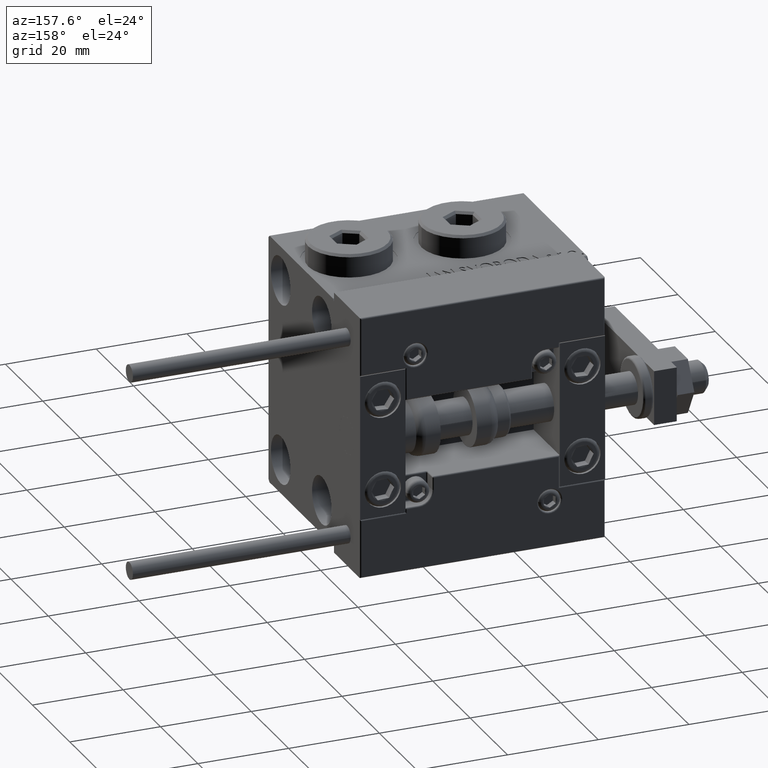
[diagram: clean part render]
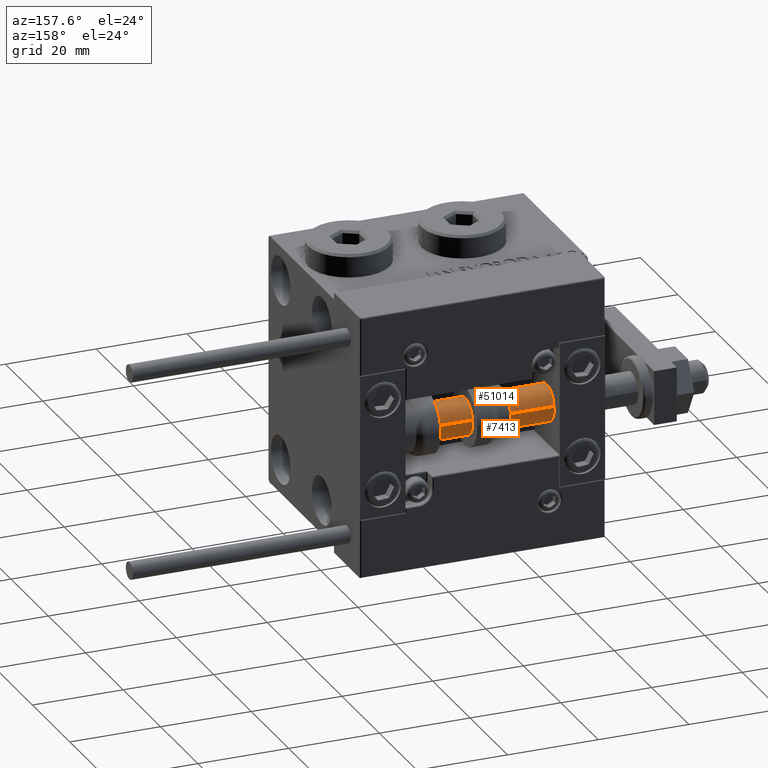
[diagram: same view with one multi-face feature highlighted, each face labeled with its STEP entity id]
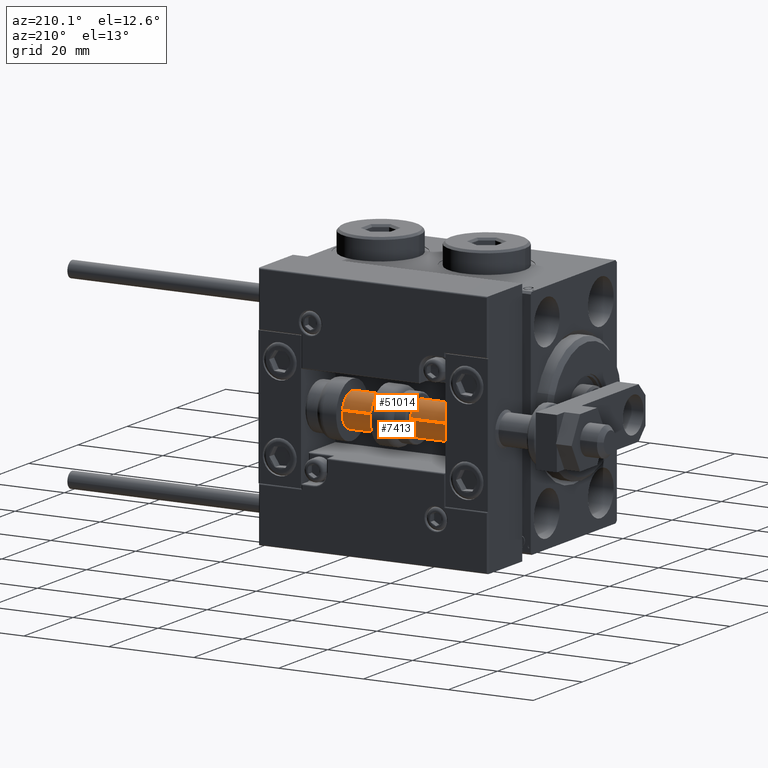
[diagram: same view with one multi-face feature highlighted, each face labeled with its STEP entity id]
A machine part, auxiliary view. The highlighted faces form ONE feature: a constant-radius fillet chain: 2 tangent blend faces with common blend radius 4 mm. The faces share edges in the B-rep.
A second angle (auxiliary view) of the same feature is appended — it is thin or edge-on in the first view.
Their STEP definitions:
[1] entity #51014 (Cylinder):
#1684 = CYLINDRICAL_SURFACE ( 'NONE', #12507, 4.000000000000000000 ) ;
#3553 = ORIENTED_EDGE ( 'NONE', *, *, #46474, .T. ) ;
#6095 = DIRECTION ( 'NONE',  ( -0.000000000000000000, -0.000000000000000000, -1.000000000000000000 ) ) ;
#6690 = DIRECTION ( 'NONE',  ( 0.000000000000000000, 0.000000000000000000, 1.000000000000000000 ) ) ;
#7547 = AXIS2_PLACEMENT_3D ( 'NONE', #39413, #31095, #38893 ) ;
#8268 = CARTESIAN_POINT ( 'NONE',  ( -4.000000000000000000, 0.000000000000000000, 56.00000000000000000 ) ) ;
#9507 = CARTESIAN_POINT ( 'NONE',  ( 0.000000000000000000, 0.000000000000000000, 56.00000000000000000 ) ) ;
#9746 = LINE ( 'NONE', #9995, #35946 ) ;
#9995 = CARTESIAN_POINT ( 'NONE',  ( -4.000000000000000000, 0.000000000000000000, 56.00000000000000000 ) ) ;
#10303 = EDGE_CURVE ( 'NONE', #16764, #18019, #43203, .T. ) ;
#10469 = LINE ( 'NONE', #50865, #31631 ) ;
#12507 = AXIS2_PLACEMENT_3D ( 'NONE', #9507, #34421, #30517 ) ;
#13399 = EDGE_CURVE ( 'NONE', #26136, #14213, #40832, .T. ) ;
#14213 = VERTEX_POINT ( 'NONE', #21523 ) ;
#16764 = VERTEX_POINT ( 'NONE', #26842 ) ;
#18019 = VERTEX_POINT ( 'NONE', #8268 ) ;
#19313 = EDGE_CURVE ( 'NONE', #18019, #14213, #9746, .T. ) ;
#21523 = CARTESIAN_POINT ( 'NONE',  ( -4.000000000000000000, 0.000000000000000000, 2.000000000000036415 ) ) ;
#22573 = DIRECTION ( 'NONE',  ( 1.000000000000000000, 0.000000000000000000, 0.000000000000000000 ) ) ;
#23499 = DIRECTION ( 'NONE',  ( -0.000000000000000000, -0.000000000000000000, -1.000000000000000000 ) ) ;
#23791 = EDGE_LOOP ( 'NONE', ( #48247, #3553, #43796, #50001 ) ) ;
#24793 = CARTESIAN_POINT ( 'NONE',  ( 4.000000000000000000, 4.898587196589412829E-16, 2.000000000000036415 ) ) ;
#26136 = VERTEX_POINT ( 'NONE', #24793 ) ;
#26842 = CARTESIAN_POINT ( 'NONE',  ( 4.000000000000000000, 4.898587196589412829E-16, 56.00000000000000000 ) ) ;
#30517 = DIRECTION ( 'NONE',  ( -1.000000000000000000, 0.000000000000000000, 0.000000000000000000 ) ) ;
#31095 = DIRECTION ( 'NONE',  ( -0.000000000000000000, -0.000000000000000000, 1.000000000000000000 ) ) ;
#31631 = VECTOR ( 'NONE', #23499, 1000.000000000000000 ) ;
#34421 = DIRECTION ( 'NONE',  ( -0.000000000000000000, -0.000000000000000000, -1.000000000000000000 ) ) ;
#35946 = VECTOR ( 'NONE', #6095, 1000.000000000000000 ) ;
#38893 = DIRECTION ( 'NONE',  ( 1.000000000000000000, 0.000000000000000000, 0.000000000000000000 ) ) ;
#39413 = CARTESIAN_POINT ( 'NONE',  ( 0.000000000000000000, 0.000000000000000000, 2.000000000000036415 ) ) ;
#40832 = CIRCLE ( 'NONE', #7547, 4.000000000000000000 ) ;
#42366 = AXIS2_PLACEMENT_3D ( 'NONE', #47321, #6690, #22573 ) ;
#43203 = CIRCLE ( 'NONE', #42366, 4.000000000000000000 ) ;
#43796 = ORIENTED_EDGE ( 'NONE', *, *, #13399, .T. ) ;
#46139 = FACE_OUTER_BOUND ( 'NONE', #23791, .T. ) ;
#46474 = EDGE_CURVE ( 'NONE', #16764, #26136, #10469, .T. ) ;
#47321 = CARTESIAN_POINT ( 'NONE',  ( 0.000000000000000000, 0.000000000000000000, 56.00000000000000000 ) ) ;
#48247 = ORIENTED_EDGE ( 'NONE', *, *, #10303, .F. ) ;
#50001 = ORIENTED_EDGE ( 'NONE', *, *, #19313, .F. ) ;
#50865 = CARTESIAN_POINT ( 'NONE',  ( 4.000000000000000000, 4.898587196589412829E-16, 56.00000000000000000 ) ) ;
#51014 = ADVANCED_FACE ( 'NONE', ( #46139 ), #1684, .T. ) ;
[2] entity #7413 (Cylinder):
#1543 = AXIS2_PLACEMENT_3D ( 'NONE', #41620, #38484, #42385 ) ;
#3561 = FACE_OUTER_BOUND ( 'NONE', #10178, .T. ) ;
#4956 = CIRCLE ( 'NONE', #15740, 4.000000000000000000 ) ;
#6095 = DIRECTION ( 'NONE',  ( -0.000000000000000000, -0.000000000000000000, -1.000000000000000000 ) ) ;
#7413 = ADVANCED_FACE ( 'NONE', ( #3561 ), #36365, .T. ) ;
#8268 = CARTESIAN_POINT ( 'NONE',  ( -4.000000000000000000, 0.000000000000000000, 56.00000000000000000 ) ) ;
#9746 = LINE ( 'NONE', #9995, #35946 ) ;
#9995 = CARTESIAN_POINT ( 'NONE',  ( -4.000000000000000000, 0.000000000000000000, 56.00000000000000000 ) ) ;
#10164 = EDGE_CURVE ( 'NONE', #18019, #16764, #4956, .T. ) ;
#10178 = EDGE_LOOP ( 'NONE', ( #21232, #51119, #20614, #26414 ) ) ;
#10469 = LINE ( 'NONE', #50865, #31631 ) ;
#12967 = DIRECTION ( 'NONE',  ( 1.000000000000000000, 0.000000000000000000, 0.000000000000000000 ) ) ;
#14213 = VERTEX_POINT ( 'NONE', #21523 ) ;
#15740 = AXIS2_PLACEMENT_3D ( 'NONE', #32768, #48674, #12967 ) ;
#15775 = DIRECTION ( 'NONE',  ( -1.000000000000000000, 0.000000000000000000, 0.000000000000000000 ) ) ;
#16764 = VERTEX_POINT ( 'NONE', #26842 ) ;
#18019 = VERTEX_POINT ( 'NONE', #8268 ) ;
#19313 = EDGE_CURVE ( 'NONE', #18019, #14213, #9746, .T. ) ;
#19448 = DIRECTION ( 'NONE',  ( -0.000000000000000000, -0.000000000000000000, -1.000000000000000000 ) ) ;
#20614 = ORIENTED_EDGE ( 'NONE', *, *, #19313, .T. ) ;
#21232 = ORIENTED_EDGE ( 'NONE', *, *, #46474, .F. ) ;
#21523 = CARTESIAN_POINT ( 'NONE',  ( -4.000000000000000000, 0.000000000000000000, 2.000000000000036415 ) ) ;
#23499 = DIRECTION ( 'NONE',  ( -0.000000000000000000, -0.000000000000000000, -1.000000000000000000 ) ) ;
#24793 = CARTESIAN_POINT ( 'NONE',  ( 4.000000000000000000, 4.898587196589412829E-16, 2.000000000000036415 ) ) ;
#26136 = VERTEX_POINT ( 'NONE', #24793 ) ;
#26414 = ORIENTED_EDGE ( 'NONE', *, *, #42142, .T. ) ;
#26842 = CARTESIAN_POINT ( 'NONE',  ( 4.000000000000000000, 4.898587196589412829E-16, 56.00000000000000000 ) ) ;
#27776 = CARTESIAN_POINT ( 'NONE',  ( 0.000000000000000000, 0.000000000000000000, 56.00000000000000000 ) ) ;
#31631 = VECTOR ( 'NONE', #23499, 1000.000000000000000 ) ;
#32768 = CARTESIAN_POINT ( 'NONE',  ( 0.000000000000000000, 0.000000000000000000, 56.00000000000000000 ) ) ;
#35614 = AXIS2_PLACEMENT_3D ( 'NONE', #27776, #19448, #15775 ) ;
#35946 = VECTOR ( 'NONE', #6095, 1000.000000000000000 ) ;
#36365 = CYLINDRICAL_SURFACE ( 'NONE', #35614, 4.000000000000000000 ) ;
#38484 = DIRECTION ( 'NONE',  ( -0.000000000000000000, -0.000000000000000000, 1.000000000000000000 ) ) ;
#41620 = CARTESIAN_POINT ( 'NONE',  ( 0.000000000000000000, 0.000000000000000000, 2.000000000000036415 ) ) ;
#42142 = EDGE_CURVE ( 'NONE', #14213, #26136, #48979, .T. ) ;
#42385 = DIRECTION ( 'NONE',  ( 1.000000000000000000, 0.000000000000000000, 0.000000000000000000 ) ) ;
#46474 = EDGE_CURVE ( 'NONE', #16764, #26136, #10469, .T. ) ;
#48674 = DIRECTION ( 'NONE',  ( 0.000000000000000000, 0.000000000000000000, 1.000000000000000000 ) ) ;
#48979 = CIRCLE ( 'NONE', #1543, 4.000000000000000000 ) ;
#50865 = CARTESIAN_POINT ( 'NONE',  ( 4.000000000000000000, 4.898587196589412829E-16, 56.00000000000000000 ) ) ;
#51119 = ORIENTED_EDGE ( 'NONE', *, *, #10164, .F. ) ;